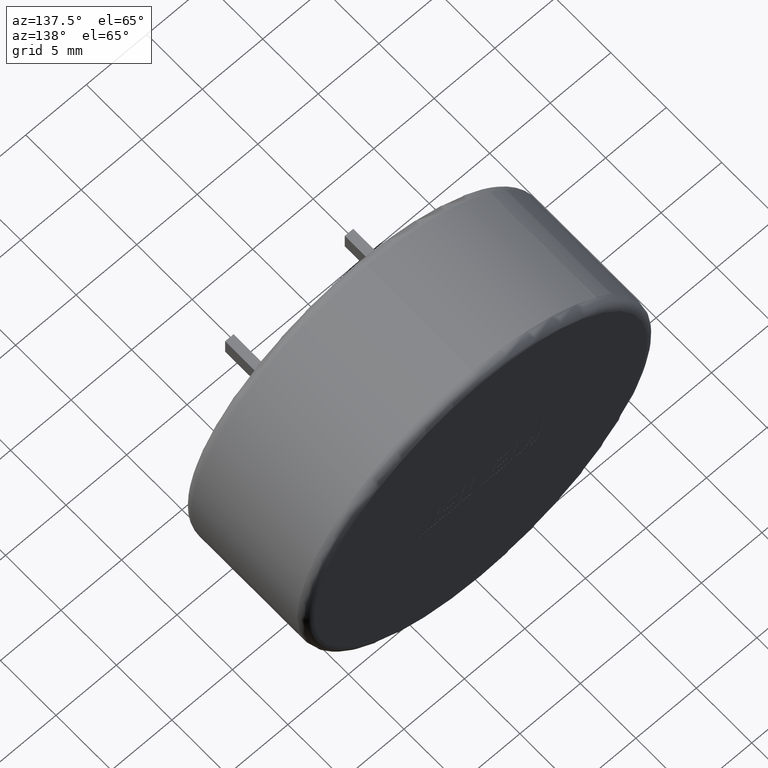
[diagram: clean part render]
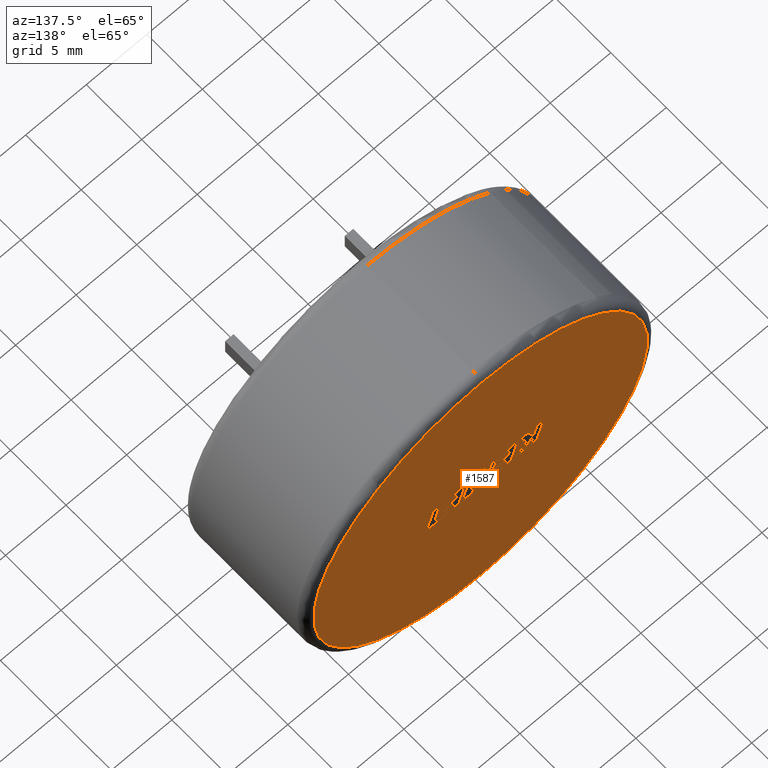
[diagram: same view with one face highlighted and labeled with its STEP entity id]
A machine part, auxiliary view. The second image highlights one B-rep face of the part: STEP entity #1587.
In plain terms, the highlighted planar face has unit normal (0, 1, 0).
Its self-contained STEP definition (entity closure, byte-faithful):
#1 = DIRECTION ( 'NONE',  ( 0.2762437428917315400, 0.0000000000000000000, -0.9610876102172824000 ) ) ;
#2 = VERTEX_POINT ( 'NONE', #606 ) ;
#11 = DIRECTION ( 'NONE',  ( 0.2746459304916897800, 0.0000000000000000000, -0.9615454294334480100 ) ) ;
#28 = CARTESIAN_POINT ( 'NONE',  ( 1.807006385584198200, 11.00000000000000000, -0.9631222229663527500 ) ) ;
#33 = VERTEX_POINT ( 'NONE', #2274 ) ;
#37 = VECTOR ( 'NONE', #2285, 1000.000000000000100 ) ;
#45 = DIRECTION ( 'NONE',  ( 1.000000000000000000, 0.0000000000000000000, -2.847054813160298500E-016 ) ) ;
#62 = DIRECTION ( 'NONE',  ( 0.2759782365590740500, 0.0000000000000000000, -0.9611638845408954100 ) ) ;
#64 = EDGE_CURVE ( 'NONE', #1723, #635, #1205, .T. ) ;
#82 = CARTESIAN_POINT ( 'NONE',  ( -0.8156049229187412000, 11.00000000000000000, -0.9631222229663523000 ) ) ;
#91 = CARTESIAN_POINT ( 'NONE',  ( 3.337746768091752500, 11.00000000000000000, 1.053028994543904200 ) ) ;
#96 = CARTESIAN_POINT ( 'NONE',  ( 3.805490025235814100, 11.00000000000000000, -0.5738409048522489200 ) ) ;
#107 = ORIENTED_EDGE ( 'NONE', *, *, #1441, .F. ) ;
#111 = VERTEX_POINT ( 'NONE', #1033 ) ;
#120 = PLANE ( 'NONE',  #1204 ) ;
#128 = EDGE_CURVE ( 'NONE', #1156, #2572, #1599, .T. ) ;
#132 = DIRECTION ( 'NONE',  ( 0.2755520632520542200, -0.0000000000000000000, -0.9612861490927329100 ) ) ;
#133 = LINE ( 'NONE', #1001, #432 ) ;
#136 = VECTOR ( 'NONE', #2311, 1000.000000000000000 ) ;
#141 = VERTEX_POINT ( 'NONE', #491 ) ;
#142 = CARTESIAN_POINT ( 'NONE',  ( 1.564110927417840000, 11.00000000000000000, -0.9631222229663527500 ) ) ;
#147 = ORIENTED_EDGE ( 'NONE', *, *, #1945, .F. ) ;
#155 = VECTOR ( 'NONE', #280, 1000.000000000000000 ) ;
#160 = CARTESIAN_POINT ( 'NONE',  ( -3.086335984546776600, 11.00000000000000000, 1.053028994543905700 ) ) ;
#166 = DIRECTION ( 'NONE',  ( -1.000000000000000000, 0.0000000000000000000, 0.0000000000000000000 ) ) ;
#170 = EDGE_CURVE ( 'NONE', #821, #2212, #2338, .T. ) ;
#175 = VERTEX_POINT ( 'NONE', #1385 ) ;
#176 = DIRECTION ( 'NONE',  ( 0.0000000000000000000, 0.0000000000000000000, 1.000000000000000000 ) ) ;
#177 = VECTOR ( 'NONE', #62, 1000.000000000000200 ) ;
#180 = VERTEX_POINT ( 'NONE', #1816 ) ;
#190 = LINE ( 'NONE', #873, #1179 ) ;
#195 = EDGE_LOOP ( 'NONE', ( #2543, #472, #1916, #1029, #1799, #1428, #1773, #1035, #626, #1578, #2075, #1127, #571, #952, #1166, #1520, #2428 ) ) ;
#200 = VECTOR ( 'NONE', #624, 1000.000000000000000 ) ;
#204 = DIRECTION ( 'NONE',  ( 0.9999960426590096500, 0.0000000000000000000, 0.002813301676022722900 ) ) ;
#207 = EDGE_LOOP ( 'NONE', ( #2710, #2151 ) ) ;
#216 = VERTEX_POINT ( 'NONE', #777 ) ;
#219 = LINE ( 'NONE', #819, #1532 ) ;
#240 = CARTESIAN_POINT ( 'NONE',  ( 2.918285894870225900, 11.00000000000000000, 0.1683628157980139000 ) ) ;
#247 = LINE ( 'NONE', #2747, #703 ) ;
#248 = VERTEX_POINT ( 'NONE', #2730 ) ;
#252 = CARTESIAN_POINT ( 'NONE',  ( 2.750351965824065400, 11.00000000000000000, 1.053028994543904400 ) ) ;
#258 = LINE ( 'NONE', #2547, #779 ) ;
#260 = EDGE_CURVE ( 'NONE', #33, #821, #219, .T. ) ;
#261 = VECTOR ( 'NONE', #1794, 1000.000000000000000 ) ;
#268 = EDGE_CURVE ( 'NONE', #1970, #1253, #1954, .T. ) ;
#280 = DIRECTION ( 'NONE',  ( 1.000000000000000000, -0.0000000000000000000, -0.0000000000000000000 ) ) ;
#281 = EDGE_CURVE ( 'NONE', #1852, #1327, #1893, .T. ) ;
#283 = CARTESIAN_POINT ( 'NONE',  ( -2.044280021955986900, 11.00000000000000000, -0.5793581909814401500 ) ) ;
#295 = LINE ( 'NONE', #1661, #871 ) ;
#297 = VERTEX_POINT ( 'NONE', #603 ) ;
#301 = CARTESIAN_POINT ( 'NONE',  ( 2.918285894870225900, 11.00000000000000000, 0.1683628157980139000 ) ) ;
#303 = ORIENTED_EDGE ( 'NONE', *, *, #914, .F. ) ;
#306 = EDGE_CURVE ( 'NONE', #1558, #2430, #1994, .T. ) ;
#328 = ORIENTED_EDGE ( 'NONE', *, *, #1687, .F. ) ;
#332 = CARTESIAN_POINT ( 'NONE',  ( -2.153399680898977000, 11.00000000000000000, -0.2043543833022431500 ) ) ;
#337 = LINE ( 'NONE', #2535, #2174 ) ;
#339 = DIRECTION ( 'NONE',  ( -0.2763173343569915700, 0.0000000000000000000, 0.9610664548998921800 ) ) ;
#347 = CARTESIAN_POINT ( 'NONE',  ( 0.0000000000000000000, 11.00000000000000000, 13.79050000000000200 ) ) ;
#351 = ORIENTED_EDGE ( 'NONE', *, *, #1288, .F. ) ;
#372 = EDGE_CURVE ( 'NONE', #2184, #662, #1793, .T. ) ;
#375 = CARTESIAN_POINT ( 'NONE',  ( -4.364136469712908800, 11.00000000000000000, -0.04168639734652045800 ) ) ;
#376 = VECTOR ( 'NONE', #2565, 1000.000000000000100 ) ;
#388 = CARTESIAN_POINT ( 'NONE',  ( 3.192556318522602200, 11.00000000000000000, -0.5766915026842742700 ) ) ;
#401 = CARTESIAN_POINT ( 'NONE',  ( -2.506168825485704900, 11.00000000000000000, -0.9631222229663520800 ) ) ;
#432 = VECTOR ( 'NONE', #797, 1000.000000000000000 ) ;
#436 = EDGE_CURVE ( 'NONE', #924, #33, #1434, .T. ) ;
#440 = ORIENTED_EDGE ( 'NONE', *, *, #2150, .F. ) ;
#455 = CARTESIAN_POINT ( 'NONE',  ( -0.8156049229187412000, 11.00000000000000000, -0.9631222229663523000 ) ) ;
#458 = EDGE_CURVE ( 'NONE', #930, #2279, #1234, .T. ) ;
#472 = ORIENTED_EDGE ( 'NONE', *, *, #436, .F. ) ;
#483 = VECTOR ( 'NONE', #2472, 1000.000000000000200 ) ;
#488 = CARTESIAN_POINT ( 'NONE',  ( 0.6798407158200339100, 11.00000000000000000, -0.9631222229663525300 ) ) ;
#491 = CARTESIAN_POINT ( 'NONE',  ( -1.394503104559656100, 11.00000000000000000, 0.1683628157939400200 ) ) ;
#494 = CIRCLE ( 'NONE', #2106, 13.79050000000000200 ) ;
#496 = VERTEX_POINT ( 'NONE', #897 ) ;
#506 = DIRECTION ( 'NONE',  ( 0.7145695586382339000, -0.0000000000000000000, -0.6995643972269883800 ) ) ;
#510 = ORIENTED_EDGE ( 'NONE', *, *, #1857, .F. ) ;
#515 = EDGE_CURVE ( 'NONE', #1226, #856, #2616, .T. ) ;
#541 = DIRECTION ( 'NONE',  ( -1.000000000000000000, 0.0000000000000000000, 0.0000000000000000000 ) ) ;
#559 = VECTOR ( 'NONE', #2703, 1000.000000000000100 ) ;
#570 = ORIENTED_EDGE ( 'NONE', *, *, #2651, .F. ) ;
#571 = ORIENTED_EDGE ( 'NONE', *, *, #1302, .F. ) ;
#597 = EDGE_CURVE ( 'NONE', #2396, #216, #1772, .T. ) ;
#602 = VERTEX_POINT ( 'NONE', #240 ) ;
#603 = CARTESIAN_POINT ( 'NONE',  ( -3.924721411668132800, 11.00000000000000000, 1.053028994543904900 ) ) ;
#606 = CARTESIAN_POINT ( 'NONE',  ( -1.125700924485933100, 11.00000000000000000, -0.5793581909814401500 ) ) ;
#610 = VERTEX_POINT ( 'NONE', #2277 ) ;
#612 = LINE ( 'NONE', #1228, #37 ) ;
#624 = DIRECTION ( 'NONE',  ( -1.000000000000000000, 0.0000000000000000000, 1.448785531673512200E-016 ) ) ;
#626 = ORIENTED_EDGE ( 'NONE', *, *, #1448, .F. ) ;
#635 = VERTEX_POINT ( 'NONE', #160 ) ;
#638 = EDGE_CURVE ( 'NONE', #1253, #1970, #494, .T. ) ;
#652 = VECTOR ( 'NONE', #45, 1000.000000000000000 ) ;
#662 = VERTEX_POINT ( 'NONE', #2109 ) ;
#663 = VERTEX_POINT ( 'NONE', #455 ) ;
#682 = LINE ( 'NONE', #332, #2690 ) ;
#686 = EDGE_CURVE ( 'NONE', #635, #1527, #1607, .T. ) ;
#688 = LINE ( 'NONE', #748, #136 ) ;
#697 = EDGE_CURVE ( 'NONE', #2596, #1212, #1143, .T. ) ;
#702 = DIRECTION ( 'NONE',  ( 0.3725077383644269700, -0.0000000000000000000, 0.9280290862136917300 ) ) ;
#703 = VECTOR ( 'NONE', #1451, 1000.000000000000000 ) ;
#704 = ORIENTED_EDGE ( 'NONE', *, *, #1771, .F. ) ;
#710 = CARTESIAN_POINT ( 'NONE',  ( -3.765038890539953000, 11.00000000000000000, -0.04168639734653927600 ) ) ;
#717 = CARTESIAN_POINT ( 'NONE',  ( 2.159524185522648100, 11.00000000000000000, -0.2042869498019199100 ) ) ;
#719 = EDGE_CURVE ( 'NONE', #141, #904, #1707, .T. ) ;
#722 = VERTEX_POINT ( 'NONE', #2590 ) ;
#735 = CARTESIAN_POINT ( 'NONE',  ( 4.931683720037595400, 11.00000000000000000, -0.5737970821254480000 ) ) ;
#740 = CARTESIAN_POINT ( 'NONE',  ( -5.251205731465742800, 11.00000000000000000, 1.053028994543842500 ) ) ;
#748 = CARTESIAN_POINT ( 'NONE',  ( -1.284868498917413500, 11.00000000000000000, 0.6694550024109757700 ) ) ;
#752 = VECTOR ( 'NONE', #1393, 1000.000000000000100 ) ;
#760 = ORIENTED_EDGE ( 'NONE', *, *, #1432, .F. ) ;
#775 = VECTOR ( 'NONE', #541, 1000.000000000000000 ) ;
#777 = CARTESIAN_POINT ( 'NONE',  ( -4.677904531710408900, 11.00000000000000000, 1.053028994543905300 ) ) ;
#779 = VECTOR ( 'NONE', #1502, 999.9999999999998900 ) ;
#788 = ORIENTED_EDGE ( 'NONE', *, *, #2541, .F. ) ;
#789 = ORIENTED_EDGE ( 'NONE', *, *, #2387, .F. ) ;
#790 = CARTESIAN_POINT ( 'NONE',  ( -3.311272758248907000, 11.00000000000000000, 1.053028994543904900 ) ) ;
#792 = VECTOR ( 'NONE', #2225, 1000.000000000000000 ) ;
#797 = DIRECTION ( 'NONE',  ( -1.000000000000000000, 0.0000000000000000000, 1.455827704943586500E-016 ) ) ;
#802 = VECTOR ( 'NONE', #1140, 1000.000000000000200 ) ;
#803 = CARTESIAN_POINT ( 'NONE',  ( 0.9844525863630282400, 11.00000000000000000, 1.053028994543904600 ) ) ;
#819 = CARTESIAN_POINT ( 'NONE',  ( 2.268643844463263300, 11.00000000000000000, -0.5792907574821812800 ) ) ;
#821 = VERTEX_POINT ( 'NONE', #1077 ) ;
#824 = LINE ( 'NONE', #1762, #2469 ) ;
#825 = ORIENTED_EDGE ( 'NONE', *, *, #2112, .F. ) ;
#826 = CARTESIAN_POINT ( 'NONE',  ( -1.273190244891335900, 11.00000000000000000, 1.053028994543905300 ) ) ;
#843 = LINE ( 'NONE', #981, #1014 ) ;
#848 = EDGE_CURVE ( 'NONE', #1689, #1558, #190, .T. ) ;
#852 = VERTEX_POINT ( 'NONE', #1583 ) ;
#856 = VERTEX_POINT ( 'NONE', #2656 ) ;
#871 = VECTOR ( 'NONE', #1906, 1000.000000000000100 ) ;
#873 = CARTESIAN_POINT ( 'NONE',  ( 2.859214151411832100, 11.00000000000000000, 0.6693814386009964100 ) ) ;
#877 = FACE_BOUND ( 'NONE', #1287, .T. ) ;
#881 = LINE ( 'NONE', #301, #261 ) ;
#895 = DIRECTION ( 'NONE',  ( 1.000000000000000000, 0.0000000000000000000, -2.506541263247940100E-016 ) ) ;
#897 = CARTESIAN_POINT ( 'NONE',  ( 0.4721173966834419400, 11.00000000000000000, 1.053028994543904900 ) ) ;
#904 = VERTEX_POINT ( 'NONE', #1763 ) ;
#914 = EDGE_CURVE ( 'NONE', #2046, #1452, #682, .T. ) ;
#921 = CARTESIAN_POINT ( 'NONE',  ( 0.9900434363040663300, 11.00000000000000000, -0.7505411885221796600 ) ) ;
#923 = EDGE_CURVE ( 'NONE', #602, #1281, #881, .T. ) ;
#924 = VERTEX_POINT ( 'NONE', #717 ) ;
#928 = ORIENTED_EDGE ( 'NONE', *, *, #1614, .F. ) ;
#930 = VERTEX_POINT ( 'NONE', #1163 ) ;
#952 = ORIENTED_EDGE ( 'NONE', *, *, #2455, .F. ) ;
#966 = VERTEX_POINT ( 'NONE', #1770 ) ;
#969 = EDGE_CURVE ( 'NONE', #1525, #496, #1105, .T. ) ;
#973 = DIRECTION ( 'NONE',  ( -1.000000000000000000, 0.0000000000000000000, 2.506186073112944800E-016 ) ) ;
#977 = LINE ( 'NONE', #2088, #2310 ) ;
#978 = LINE ( 'NONE', #96, #2624 ) ;
#980 = CARTESIAN_POINT ( 'NONE',  ( 2.750351965824065400, 11.00000000000000000, 1.053028994543904400 ) ) ;
#981 = CARTESIAN_POINT ( 'NONE',  ( 0.4721173966834419400, 11.00000000000000000, 1.053028994543904900 ) ) ;
#982 = VECTOR ( 'NONE', #1471, 1000.000000000000000 ) ;
#995 = ORIENTED_EDGE ( 'NONE', *, *, #2090, .F. ) ;
#1001 = CARTESIAN_POINT ( 'NONE',  ( -1.016703871901081000, 11.00000000000000000, -0.9631222229663523000 ) ) ;
#1003 = EDGE_CURVE ( 'NONE', #2212, #1226, #978, .T. ) ;
#1009 = CARTESIAN_POINT ( 'NONE',  ( 1.732293513563909800E-015, 11.00000000000000000, -13.79050000000000200 ) ) ;
#1013 = ORIENTED_EDGE ( 'NONE', *, *, #597, .F. ) ;
#1014 = VECTOR ( 'NONE', #1641, 1000.000000000000000 ) ;
#1016 = CARTESIAN_POINT ( 'NONE',  ( 2.053187690916773900, 11.00000000000000000, 0.1683628157980141300 ) ) ;
#1024 = ORIENTED_EDGE ( 'NONE', *, *, #64, .F. ) ;
#1025 = ORIENTED_EDGE ( 'NONE', *, *, #969, .F. ) ;
#1029 = ORIENTED_EDGE ( 'NONE', *, *, #923, .F. ) ;
#1033 = CARTESIAN_POINT ( 'NONE',  ( -2.823838918333584600, 11.00000000000000000, -0.9631222229663523000 ) ) ;
#1035 = ORIENTED_EDGE ( 'NONE', *, *, #1734, .F. ) ;
#1064 = LINE ( 'NONE', #1488, #2290 ) ;
#1066 = ORIENTED_EDGE ( 'NONE', *, *, #1202, .F. ) ;
#1077 = CARTESIAN_POINT ( 'NONE',  ( 3.192556318522601800, 11.00000000000000000, -0.5766915026842742700 ) ) ;
#1105 = LINE ( 'NONE', #921, #1381 ) ;
#1107 = VECTOR ( 'NONE', #166, 1000.000000000000000 ) ;
#1120 = CARTESIAN_POINT ( 'NONE',  ( 5.043569033575890300, 11.00000000000000000, -0.9631222229663530800 ) ) ;
#1121 = ORIENTED_EDGE ( 'NONE', *, *, #372, .F. ) ;
#1127 = ORIENTED_EDGE ( 'NONE', *, *, #697, .F. ) ;
#1139 = ORIENTED_EDGE ( 'NONE', *, *, #1890, .F. ) ;
#1140 = DIRECTION ( 'NONE',  ( 0.2740217765954067200, 0.0000000000000000000, -0.9617234872620595800 ) ) ;
#1143 = LINE ( 'NONE', #2117, #376 ) ;
#1146 = CARTESIAN_POINT ( 'NONE',  ( -0.9143214339711456300, 11.00000000000000000, 1.053028994543905300 ) ) ;
#1147 = VECTOR ( 'NONE', #506, 1000.000000000000000 ) ;
#1156 = VERTEX_POINT ( 'NONE', #790 ) ;
#1163 = CARTESIAN_POINT ( 'NONE',  ( -2.402511279821104600, 11.00000000000000000, 0.6694550024109757700 ) ) ;
#1166 = ORIENTED_EDGE ( 'NONE', *, *, #515, .F. ) ;
#1179 = VECTOR ( 'NONE', #1966, 1000.000000000000000 ) ;
#1180 = LINE ( 'NONE', #1643, #559 ) ;
#1186 = CARTESIAN_POINT ( 'NONE',  ( -2.506168825485704900, 11.00000000000000000, -0.9631222229663520800 ) ) ;
#1193 = VERTEX_POINT ( 'NONE', #2379 ) ;
#1202 = EDGE_CURVE ( 'NONE', #2572, #111, #2278, .T. ) ;
#1204 = AXIS2_PLACEMENT_3D ( 'NONE', #1383, #1561, #2449 ) ;
#1205 = LINE ( 'NONE', #401, #2095 ) ;
#1212 = VERTEX_POINT ( 'NONE', #1120 ) ;
#1214 = CARTESIAN_POINT ( 'NONE',  ( 3.024744995834479400, 11.00000000000000000, -0.2042869498019201400 ) ) ;
#1222 = DIRECTION ( 'NONE',  ( 0.2745159998572669300, 0.0000000000000000000, -0.9615825319869143500 ) ) ;
#1226 = VERTEX_POINT ( 'NONE', #91 ) ;
#1228 = CARTESIAN_POINT ( 'NONE',  ( -0.03453285888950724500, 11.00000000000000000, 0.4772421111879622800 ) ) ;
#1231 = EDGE_LOOP ( 'NONE', ( #351, #1121, #760, #1025, #2762, #1912, #995, #1613, #1543, #1024, #1748, #510, #928, #303, #825, #1680, #328, #1430, #2391, #1139, #789, #1540, #107 ) ) ;
#1232 = CARTESIAN_POINT ( 'NONE',  ( -0.4995563842746180700, 11.00000000000000000, 1.053028994543905300 ) ) ;
#1234 = LINE ( 'NONE', #2619, #802 ) ;
#1236 = DIRECTION ( 'NONE',  ( 0.2729786930695173900, 0.0000000000000000000, -0.9620200793798735500 ) ) ;
#1242 = VECTOR ( 'NONE', #2527, 1000.000000000000000 ) ;
#1246 = EDGE_CURVE ( 'NONE', #180, #1723, #133, .T. ) ;
#1252 = CARTESIAN_POINT ( 'NONE',  ( -5.251205731465742800, 11.00000000000000000, 1.053028994543842500 ) ) ;
#1253 = VERTEX_POINT ( 'NONE', #1009 ) ;
#1261 = EDGE_CURVE ( 'NONE', #1281, #924, #2377, .T. ) ;
#1265 = DIRECTION ( 'NONE',  ( 0.2763139702539117400, 0.0000000000000000000, -0.9610674221107072800 ) ) ;
#1272 = CARTESIAN_POINT ( 'NONE',  ( -1.394503104559656100, 11.00000000000000000, 0.1683628157939400200 ) ) ;
#1281 = VERTEX_POINT ( 'NONE', #2501 ) ;
#1287 = EDGE_LOOP ( 'NONE', ( #2578, #570, #704, #440, #788, #1066, #1803, #1813, #147, #1895, #1013 ) ) ;
#1288 = EDGE_CURVE ( 'NONE', #662, #1487, #2341, .T. ) ;
#1302 = EDGE_CURVE ( 'NONE', #966, #2596, #1180, .T. ) ;
#1304 = VECTOR ( 'NONE', #1667, 1000.000000000000000 ) ;
#1309 = LINE ( 'NONE', #2420, #1387 ) ;
#1315 = LINE ( 'NONE', #1666, #1242 ) ;
#1318 = LINE ( 'NONE', #2093, #200 ) ;
#1322 = DIRECTION ( 'NONE',  ( 1.000000000000000000, -0.0000000000000000000, 1.096870650732911000E-013 ) ) ;
#1325 = DIRECTION ( 'NONE',  ( -0.4443210308329209000, 0.0000000000000000000, 0.8958676361826954900 ) ) ;
#1327 = VERTEX_POINT ( 'NONE', #2713 ) ;
#1340 = LINE ( 'NONE', #2442, #775 ) ;
#1352 = EDGE_CURVE ( 'NONE', #1499, #610, #1737, .T. ) ;
#1359 = VERTEX_POINT ( 'NONE', #1892 ) ;
#1361 = LINE ( 'NONE', #1786, #792 ) ;
#1381 = VECTOR ( 'NONE', #2426, 1000.000000000000200 ) ;
#1383 = CARTESIAN_POINT ( 'NONE',  ( 0.0000000000000000000, 11.00000000000000000, 0.0000000000000000000 ) ) ;
#1385 = CARTESIAN_POINT ( 'NONE',  ( -0.03453285888950724500, 11.00000000000000000, 0.4772421111879622800 ) ) ;
#1387 = VECTOR ( 'NONE', #1782, 1000.000000000000000 ) ;
#1393 = DIRECTION ( 'NONE',  ( 0.2755265765475025100, -0.0000000000000000000, -0.9612934544747577800 ) ) ;
#1414 = VECTOR ( 'NONE', #973, 1000.000000000000000 ) ;
#1428 = ORIENTED_EDGE ( 'NONE', *, *, #306, .F. ) ;
#1430 = ORIENTED_EDGE ( 'NONE', *, *, #458, .F. ) ;
#1432 = EDGE_CURVE ( 'NONE', #496, #2184, #843, .T. ) ;
#1434 = LINE ( 'NONE', #1976, #2546 ) ;
#1438 = VECTOR ( 'NONE', #1222, 999.9999999999998900 ) ;
#1441 = EDGE_CURVE ( 'NONE', #1487, #175, #2070, .T. ) ;
#1448 = EDGE_CURVE ( 'NONE', #1327, #1456, #1774, .T. ) ;
#1451 = DIRECTION ( 'NONE',  ( -1.000000000000000000, 0.0000000000000000000, 5.050979426444720200E-016 ) ) ;
#1452 = VERTEX_POINT ( 'NONE', #283 ) ;
#1454 = CARTESIAN_POINT ( 'NONE',  ( 1.807006385584198200, 11.00000000000000000, -0.9631222229663527500 ) ) ;
#1456 = VERTEX_POINT ( 'NONE', #252 ) ;
#1471 = DIRECTION ( 'NONE',  ( 1.000000000000000000, 0.0000000000000000000, 0.0000000000000000000 ) ) ;
#1487 = VERTEX_POINT ( 'NONE', #488 ) ;
#1488 = CARTESIAN_POINT ( 'NONE',  ( 3.912071732558238600, 11.00000000000000000, 1.053028994543904000 ) ) ;
#1492 = CARTESIAN_POINT ( 'NONE',  ( 0.0000000000000000000, 11.00000000000000000, 0.0000000000000000000 ) ) ;
#1499 = VERTEX_POINT ( 'NONE', #2585 ) ;
#1502 = DIRECTION ( 'NONE',  ( 0.2732148821745903900, 0.0000000000000000000, -0.9619530280415592400 ) ) ;
#1520 = ORIENTED_EDGE ( 'NONE', *, *, #1003, .F. ) ;
#1521 = CARTESIAN_POINT ( 'NONE',  ( -2.823838918333584600, 11.00000000000000000, -0.9631222229663523000 ) ) ;
#1524 = VECTOR ( 'NONE', #895, 1000.000000000000000 ) ;
#1525 = VERTEX_POINT ( 'NONE', #2138 ) ;
#1527 = VERTEX_POINT ( 'NONE', #1933 ) ;
#1532 = VECTOR ( 'NONE', #204, 999.9999999999998900 ) ;
#1536 = LINE ( 'NONE', #1622, #2723 ) ;
#1540 = ORIENTED_EDGE ( 'NONE', *, *, #2447, .F. ) ;
#1543 = ORIENTED_EDGE ( 'NONE', *, *, #686, .F. ) ;
#1544 = VERTEX_POINT ( 'NONE', #1775 ) ;
#1554 = DIRECTION ( 'NONE',  ( -0.2762517575166151300, 0.0000000000000000000, 0.9610853065513910200 ) ) ;
#1558 = VERTEX_POINT ( 'NONE', #1736 ) ;
#1561 = DIRECTION ( 'NONE',  ( 0.0000000000000000000, 1.000000000000000000, 0.0000000000000000000 ) ) ;
#1578 = ORIENTED_EDGE ( 'NONE', *, *, #281, .F. ) ;
#1580 = DIRECTION ( 'NONE',  ( -0.7059037656364859400, -0.0000000000000000000, 0.7083077534943613700 ) ) ;
#1583 = CARTESIAN_POINT ( 'NONE',  ( -4.344182283275985800, 11.00000000000000000, -0.1033573956103139300 ) ) ;
#1587 = ADVANCED_FACE ( 'NONE', ( #1963, #2002, #877, #2247 ), #120, .T. ) ;
#1599 = LINE ( 'NONE', #1837, #1956 ) ;
#1607 = LINE ( 'NONE', #826, #982 ) ;
#1613 = ORIENTED_EDGE ( 'NONE', *, *, #2296, .F. ) ;
#1614 = EDGE_CURVE ( 'NONE', #1452, #2, #1309, .T. ) ;
#1622 = CARTESIAN_POINT ( 'NONE',  ( -4.344182283275985800, 11.00000000000000000, -0.1033573956103139300 ) ) ;
#1625 = VERTEX_POINT ( 'NONE', #2190 ) ;
#1641 = DIRECTION ( 'NONE',  ( 1.000000000000000000, 0.0000000000000000000, -4.232393926185561900E-016 ) ) ;
#1643 = CARTESIAN_POINT ( 'NONE',  ( 4.379680122707077800, 11.00000000000000000, -0.5738409048472185000 ) ) ;
#1648 = CARTESIAN_POINT ( 'NONE',  ( 1.910155113253702200, 11.00000000000000000, 0.6693814386009966400 ) ) ;
#1661 = CARTESIAN_POINT ( 'NONE',  ( -0.3989456066037058200, 11.00000000000000000, -0.7418974402618798700 ) ) ;
#1666 = CARTESIAN_POINT ( 'NONE',  ( -2.259736175507299100, 11.00000000000000000, 0.1683628157939400200 ) ) ;
#1667 = DIRECTION ( 'NONE',  ( -0.2764273280489769100, 0.0000000000000000000, 0.9610348236706635100 ) ) ;
#1675 = DIRECTION ( 'NONE',  ( 0.0000000000000000000, 1.000000000000000000, 0.0000000000000000000 ) ) ;
#1680 = ORIENTED_EDGE ( 'NONE', *, *, #719, .F. ) ;
#1687 = EDGE_CURVE ( 'NONE', #2279, #141, #1315, .T. ) ;
#1689 = VERTEX_POINT ( 'NONE', #2243 ) ;
#1697 = AXIS2_PLACEMENT_3D ( 'NONE', #2313, #1675, #176 ) ;
#1704 = CARTESIAN_POINT ( 'NONE',  ( 2.053187690916773900, 11.00000000000000000, 0.1683628157980141300 ) ) ;
#1707 = LINE ( 'NONE', #1272, #2490 ) ;
#1723 = VERTEX_POINT ( 'NONE', #1186 ) ;
#1726 = EDGE_CURVE ( 'NONE', #216, #248, #1867, .T. ) ;
#1733 = LINE ( 'NONE', #2198, #2136 ) ;
#1734 = EDGE_CURVE ( 'NONE', #1456, #1689, #2102, .T. ) ;
#1736 = CARTESIAN_POINT ( 'NONE',  ( 1.910155113253702200, 11.00000000000000000, 0.6693814386009966400 ) ) ;
#1737 = LINE ( 'NONE', #1232, #2314 ) ;
#1744 = CARTESIAN_POINT ( 'NONE',  ( 3.337746768091752500, 11.00000000000000000, 1.053028994543904200 ) ) ;
#1748 = ORIENTED_EDGE ( 'NONE', *, *, #1246, .F. ) ;
#1757 = CARTESIAN_POINT ( 'NONE',  ( -2.153399680898977000, 11.00000000000000000, -0.2043543833022431500 ) ) ;
#1762 = CARTESIAN_POINT ( 'NONE',  ( -3.487335487235283500, 11.00000000000000000, -0.9631222229663523000 ) ) ;
#1763 = CARTESIAN_POINT ( 'NONE',  ( -1.288044003593056700, 11.00000000000000000, -0.2043543833022431500 ) ) ;
#1765 = EDGE_CURVE ( 'NONE', #1544, #930, #688, .T. ) ;
#1767 = VECTOR ( 'NONE', #2230, 1000.000000000000100 ) ;
#1770 = CARTESIAN_POINT ( 'NONE',  ( 4.379680122707077800, 11.00000000000000000, -0.5738409048472185000 ) ) ;
#1771 = EDGE_CURVE ( 'NONE', #852, #1193, #337, .T. ) ;
#1772 = LINE ( 'NONE', #2372, #2343 ) ;
#1773 = ORIENTED_EDGE ( 'NONE', *, *, #848, .F. ) ;
#1774 = LINE ( 'NONE', #2373, #652 ) ;
#1775 = CARTESIAN_POINT ( 'NONE',  ( -1.284868498917413500, 11.00000000000000000, 0.6694550024109757700 ) ) ;
#1782 = DIRECTION ( 'NONE',  ( 1.000000000000000000, 0.0000000000000000000, 0.0000000000000000000 ) ) ;
#1786 = CARTESIAN_POINT ( 'NONE',  ( -4.671798733445354100, 11.00000000000000000, -0.9631222229663523000 ) ) ;
#1793 = LINE ( 'NONE', #803, #2618 ) ;
#1794 = DIRECTION ( 'NONE',  ( 0.2746918797667231600, 0.0000000000000000000, -0.9615323037684299100 ) ) ;
#1799 = ORIENTED_EDGE ( 'NONE', *, *, #2754, .F. ) ;
#1803 = ORIENTED_EDGE ( 'NONE', *, *, #128, .F. ) ;
#1813 = ORIENTED_EDGE ( 'NONE', *, *, #2059, .F. ) ;
#1816 = CARTESIAN_POINT ( 'NONE',  ( -1.016703871901081000, 11.00000000000000000, -0.9631222229663523000 ) ) ;
#1826 = LINE ( 'NONE', #740, #1767 ) ;
#1837 = CARTESIAN_POINT ( 'NONE',  ( -3.765038890539953000, 11.00000000000000000, -0.04168639734653927600 ) ) ;
#1852 = VERTEX_POINT ( 'NONE', #28 ) ;
#1856 = DIRECTION ( 'NONE',  ( -0.2765379750249959400, 0.0000000000000000000, 0.9610029908221278100 ) ) ;
#1857 = EDGE_CURVE ( 'NONE', #2, #180, #258, .T. ) ;
#1867 = LINE ( 'NONE', #375, #752 ) ;
#1890 = EDGE_CURVE ( 'NONE', #663, #1544, #2488, .T. ) ;
#1892 = CARTESIAN_POINT ( 'NONE',  ( -0.3989456066037058200, 11.00000000000000000, -0.7418974402618798700 ) ) ;
#1893 = LINE ( 'NONE', #1454, #1304 ) ;
#1894 = DIRECTION ( 'NONE',  ( -1.000000000000000000, -0.0000000000000000000, -0.0000000000000000000 ) ) ;
#1895 = ORIENTED_EDGE ( 'NONE', *, *, #1726, .F. ) ;
#1906 = DIRECTION ( 'NONE',  ( -0.05596501978067570900, 0.0000000000000000000, 0.9984327301130249100 ) ) ;
#1912 = ORIENTED_EDGE ( 'NONE', *, *, #1352, .F. ) ;
#1916 = ORIENTED_EDGE ( 'NONE', *, *, #1261, .F. ) ;
#1933 = CARTESIAN_POINT ( 'NONE',  ( -0.9143214339711456300, 11.00000000000000000, 1.053028994543905300 ) ) ;
#1945 = EDGE_CURVE ( 'NONE', #248, #297, #1733, .T. ) ;
#1954 = CIRCLE ( 'NONE', #1697, 13.79050000000000200 ) ;
#1956 = VECTOR ( 'NONE', #2722, 1000.000000000000100 ) ;
#1963 = FACE_BOUND ( 'NONE', #195, .T. ) ;
#1966 = DIRECTION ( 'NONE',  ( -1.000000000000000000, 0.0000000000000000000, 2.284793946200968400E-016 ) ) ;
#1970 = VERTEX_POINT ( 'NONE', #347 ) ;
#1976 = CARTESIAN_POINT ( 'NONE',  ( 2.159524185522648100, 11.00000000000000000, -0.2042869498019199100 ) ) ;
#1994 = LINE ( 'NONE', #1648, #1438 ) ;
#2002 = FACE_BOUND ( 'NONE', #1231, .T. ) ;
#2025 = CARTESIAN_POINT ( 'NONE',  ( 3.805490025235814100, 11.00000000000000000, -0.5738409048522489200 ) ) ;
#2042 = VECTOR ( 'NONE', #1325, 1000.000000000000100 ) ;
#2046 = VERTEX_POINT ( 'NONE', #1757 ) ;
#2059 = EDGE_CURVE ( 'NONE', #297, #1156, #2065, .T. ) ;
#2065 = LINE ( 'NONE', #2187, #155 ) ;
#2070 = LINE ( 'NONE', #2605, #2042 ) ;
#2075 = ORIENTED_EDGE ( 'NONE', *, *, #2340, .F. ) ;
#2088 = CARTESIAN_POINT ( 'NONE',  ( 0.03793149982259607500, 11.00000000000000000, 1.053028994543905100 ) ) ;
#2090 = EDGE_CURVE ( 'NONE', #1359, #1499, #295, .T. ) ;
#2093 = CARTESIAN_POINT ( 'NONE',  ( 3.303711244630005400, 11.00000000000000000, -0.9631222229663528600 ) ) ;
#2095 = VECTOR ( 'NONE', #1856, 1000.000000000000000 ) ;
#2098 = CARTESIAN_POINT ( 'NONE',  ( -2.259736175507299100, 11.00000000000000000, 0.1683628157939400200 ) ) ;
#2102 = LINE ( 'NONE', #980, #2456 ) ;
#2106 = AXIS2_PLACEMENT_3D ( 'NONE', #1492, #2545, #2764 ) ;
#2109 = CARTESIAN_POINT ( 'NONE',  ( 1.564110927417840000, 11.00000000000000000, -0.9631222229663527500 ) ) ;
#2111 = DIRECTION ( 'NONE',  ( 1.000000000000000000, 0.0000000000000000000, -4.034331580539989700E-016 ) ) ;
#2112 = EDGE_CURVE ( 'NONE', #904, #2046, #1340, .T. ) ;
#2117 = CARTESIAN_POINT ( 'NONE',  ( 4.931683720037595400, 11.00000000000000000, -0.5737970821254480000 ) ) ;
#2129 = DIRECTION ( 'NONE',  ( 0.4668459304955212000, 0.0000000000000000000, -0.8843386665637610300 ) ) ;
#2136 = VECTOR ( 'NONE', #702, 1000.000000000000000 ) ;
#2138 = CARTESIAN_POINT ( 'NONE',  ( 0.9900434363040663300, 11.00000000000000000, -0.7505411885221796600 ) ) ;
#2141 = VERTEX_POINT ( 'NONE', #2462 ) ;
#2150 = EDGE_CURVE ( 'NONE', #1625, #852, #1536, .T. ) ;
#2151 = ORIENTED_EDGE ( 'NONE', *, *, #638, .T. ) ;
#2174 = VECTOR ( 'NONE', #132, 1000.000000000000100 ) ;
#2184 = VERTEX_POINT ( 'NONE', #2662 ) ;
#2187 = CARTESIAN_POINT ( 'NONE',  ( -3.311272758248907000, 11.00000000000000000, 1.053028994543904900 ) ) ;
#2190 = CARTESIAN_POINT ( 'NONE',  ( -3.487335487235283500, 11.00000000000000000, -0.9631222229663523000 ) ) ;
#2196 = DIRECTION ( 'NONE',  ( 0.2793947940878295200, 0.0000000000000000000, -0.9601763114327595000 ) ) ;
#2197 = EDGE_CURVE ( 'NONE', #722, #2396, #1826, .T. ) ;
#2198 = CARTESIAN_POINT ( 'NONE',  ( -3.924721411668132800, 11.00000000000000000, 1.053028994543904900 ) ) ;
#2212 = VERTEX_POINT ( 'NONE', #2025 ) ;
#2225 = DIRECTION ( 'NONE',  ( -1.000000000000000000, -0.0000000000000000000, -0.0000000000000000000 ) ) ;
#2230 = DIRECTION ( 'NONE',  ( -0.2762033010252001900, -0.0000000000000000000, 0.9610992334315862100 ) ) ;
#2243 = CARTESIAN_POINT ( 'NONE',  ( 2.859214151411832100, 11.00000000000000000, 0.6693814386009964100 ) ) ;
#2247 = FACE_OUTER_BOUND ( 'NONE', #207, .T. ) ;
#2270 = EDGE_CURVE ( 'NONE', #610, #1525, #977, .T. ) ;
#2274 = CARTESIAN_POINT ( 'NONE',  ( 2.268643844463263300, 11.00000000000000000, -0.5792907574821812800 ) ) ;
#2277 = CARTESIAN_POINT ( 'NONE',  ( 0.03793149982259607500, 11.00000000000000000, 1.053028994543905100 ) ) ;
#2278 = LINE ( 'NONE', #1521, #1147 ) ;
#2279 = VERTEX_POINT ( 'NONE', #2098 ) ;
#2285 = DIRECTION ( 'NONE',  ( 0.05375259206908298400, 0.0000000000000000000, -0.9985542843760947300 ) ) ;
#2290 = VECTOR ( 'NONE', #1, 1000.000000000000000 ) ;
#2296 = EDGE_CURVE ( 'NONE', #1527, #1359, #2507, .T. ) ;
#2299 = VECTOR ( 'NONE', #2403, 1000.000000000000000 ) ;
#2310 = VECTOR ( 'NONE', #2129, 1000.000000000000200 ) ;
#2311 = DIRECTION ( 'NONE',  ( -1.000000000000000000, 0.0000000000000000000, 0.0000000000000000000 ) ) ;
#2313 = CARTESIAN_POINT ( 'NONE',  ( 0.0000000000000000000, 11.00000000000000000, 0.0000000000000000000 ) ) ;
#2314 = VECTOR ( 'NONE', #2111, 1000.000000000000000 ) ;
#2338 = LINE ( 'NONE', #388, #483 ) ;
#2340 = EDGE_CURVE ( 'NONE', #1212, #1852, #1318, .T. ) ;
#2341 = LINE ( 'NONE', #142, #1107 ) ;
#2343 = VECTOR ( 'NONE', #1322, 1000.000000000000000 ) ;
#2372 = CARTESIAN_POINT ( 'NONE',  ( -4.677904531710408900, 11.00000000000000000, 1.053028994543905300 ) ) ;
#2373 = CARTESIAN_POINT ( 'NONE',  ( 1.227090569557494300, 11.00000000000000000, 1.053028994543904900 ) ) ;
#2377 = LINE ( 'NONE', #1214, #1414 ) ;
#2379 = CARTESIAN_POINT ( 'NONE',  ( -4.097731242331414100, 11.00000000000000000, -0.9631222229663523000 ) ) ;
#2387 = EDGE_CURVE ( 'NONE', #2141, #663, #247, .T. ) ;
#2391 = ORIENTED_EDGE ( 'NONE', *, *, #1765, .F. ) ;
#2396 = VERTEX_POINT ( 'NONE', #1252 ) ;
#2403 = DIRECTION ( 'NONE',  ( 1.000000000000000000, 0.0000000000000000000, -3.775570415932256000E-016 ) ) ;
#2420 = CARTESIAN_POINT ( 'NONE',  ( -2.044280021955986900, 11.00000000000000000, -0.5793581909814401500 ) ) ;
#2426 = DIRECTION ( 'NONE',  ( -0.2760118818968560500, 0.0000000000000000000, 0.9611542233438689100 ) ) ;
#2428 = ORIENTED_EDGE ( 'NONE', *, *, #170, .F. ) ;
#2430 = VERTEX_POINT ( 'NONE', #1016 ) ;
#2442 = CARTESIAN_POINT ( 'NONE',  ( -1.288044003593056700, 11.00000000000000000, -0.2043543833022431500 ) ) ;
#2447 = EDGE_CURVE ( 'NONE', #175, #2141, #612, .T. ) ;
#2449 = DIRECTION ( 'NONE',  ( 0.0000000000000000000, -0.0000000000000000000, 1.000000000000000000 ) ) ;
#2455 = EDGE_CURVE ( 'NONE', #856, #966, #1064, .T. ) ;
#2456 = VECTOR ( 'NONE', #1236, 1000.000000000000000 ) ;
#2462 = CARTESIAN_POINT ( 'NONE',  ( 0.04300255174971300700, 11.00000000000000000, -0.9631222229663527500 ) ) ;
#2469 = VECTOR ( 'NONE', #1894, 1000.000000000000000 ) ;
#2472 = DIRECTION ( 'NONE',  ( 0.9999891854650020400, 0.0000000000000000000, 0.004650693823678137000 ) ) ;
#2488 = LINE ( 'NONE', #82, #2725 ) ;
#2490 = VECTOR ( 'NONE', #11, 1000.000000000000100 ) ;
#2501 = CARTESIAN_POINT ( 'NONE',  ( 3.024744995834479400, 11.00000000000000000, -0.2042869498019201400 ) ) ;
#2507 = LINE ( 'NONE', #1146, #177 ) ;
#2527 = DIRECTION ( 'NONE',  ( 1.000000000000000000, 0.0000000000000000000, 0.0000000000000000000 ) ) ;
#2535 = CARTESIAN_POINT ( 'NONE',  ( -4.097731242331414100, 11.00000000000000000, -0.9631222229663523000 ) ) ;
#2541 = EDGE_CURVE ( 'NONE', #111, #1625, #824, .T. ) ;
#2543 = ORIENTED_EDGE ( 'NONE', *, *, #260, .F. ) ;
#2545 = DIRECTION ( 'NONE',  ( 0.0000000000000000000, 1.000000000000000000, 0.0000000000000000000 ) ) ;
#2546 = VECTOR ( 'NONE', #2610, 1000.000000000000100 ) ;
#2547 = CARTESIAN_POINT ( 'NONE',  ( -1.125700924485933100, 11.00000000000000000, -0.5793581909814401500 ) ) ;
#2565 = DIRECTION ( 'NONE',  ( 0.2762033010288755300, 0.0000000000000000000, -0.9610992334305299400 ) ) ;
#2572 = VERTEX_POINT ( 'NONE', #710 ) ;
#2578 = ORIENTED_EDGE ( 'NONE', *, *, #2197, .F. ) ;
#2585 = CARTESIAN_POINT ( 'NONE',  ( -0.4995563842746180700, 11.00000000000000000, 1.053028994543905300 ) ) ;
#2590 = CARTESIAN_POINT ( 'NONE',  ( -4.671798733445354100, 11.00000000000000000, -0.9631222229663523000 ) ) ;
#2596 = VERTEX_POINT ( 'NONE', #735 ) ;
#2605 = CARTESIAN_POINT ( 'NONE',  ( 0.6798407158200340300, 11.00000000000000000, -0.9631222229663527500 ) ) ;
#2607 = LINE ( 'NONE', #1704, #1524 ) ;
#2610 = DIRECTION ( 'NONE',  ( 0.2793947940814914300, 0.0000000000000000000, -0.9601763114346035800 ) ) ;
#2616 = LINE ( 'NONE', #1744, #2299 ) ;
#2618 = VECTOR ( 'NONE', #1265, 1000.000000000000000 ) ;
#2619 = CARTESIAN_POINT ( 'NONE',  ( -2.402511279821104600, 11.00000000000000000, 0.6694550024109757700 ) ) ;
#2624 = VECTOR ( 'NONE', #339, 1000.000000000000200 ) ;
#2651 = EDGE_CURVE ( 'NONE', #1193, #722, #1361, .T. ) ;
#2656 = CARTESIAN_POINT ( 'NONE',  ( 3.912071732558238600, 11.00000000000000000, 1.053028994543904000 ) ) ;
#2662 = CARTESIAN_POINT ( 'NONE',  ( 0.9844525863630282400, 11.00000000000000000, 1.053028994543904600 ) ) ;
#2690 = VECTOR ( 'NONE', #2196, 999.9999999999998900 ) ;
#2703 = DIRECTION ( 'NONE',  ( 0.9999999968487352000, 0.0000000000000000000, 7.938847109754407800E-005 ) ) ;
#2710 = ORIENTED_EDGE ( 'NONE', *, *, #268, .T. ) ;
#2713 = CARTESIAN_POINT ( 'NONE',  ( 1.227090569557494300, 11.00000000000000000, 1.053028994543904900 ) ) ;
#2722 = DIRECTION ( 'NONE',  ( -0.3829140317376766900, -0.0000000000000000000, -0.9237839814038764100 ) ) ;
#2723 = VECTOR ( 'NONE', #1580, 1000.000000000000100 ) ;
#2725 = VECTOR ( 'NONE', #1554, 1000.000000000000100 ) ;
#2730 = CARTESIAN_POINT ( 'NONE',  ( -4.364136469712908800, 11.00000000000000000, -0.04168639734652045800 ) ) ;
#2747 = CARTESIAN_POINT ( 'NONE',  ( 0.04300255174971300700, 11.00000000000000000, -0.9631222229663527500 ) ) ;
#2754 = EDGE_CURVE ( 'NONE', #2430, #602, #2607, .T. ) ;
#2762 = ORIENTED_EDGE ( 'NONE', *, *, #2270, .F. ) ;
#2764 = DIRECTION ( 'NONE',  ( 0.0000000000000000000, 0.0000000000000000000, 1.000000000000000000 ) ) ;